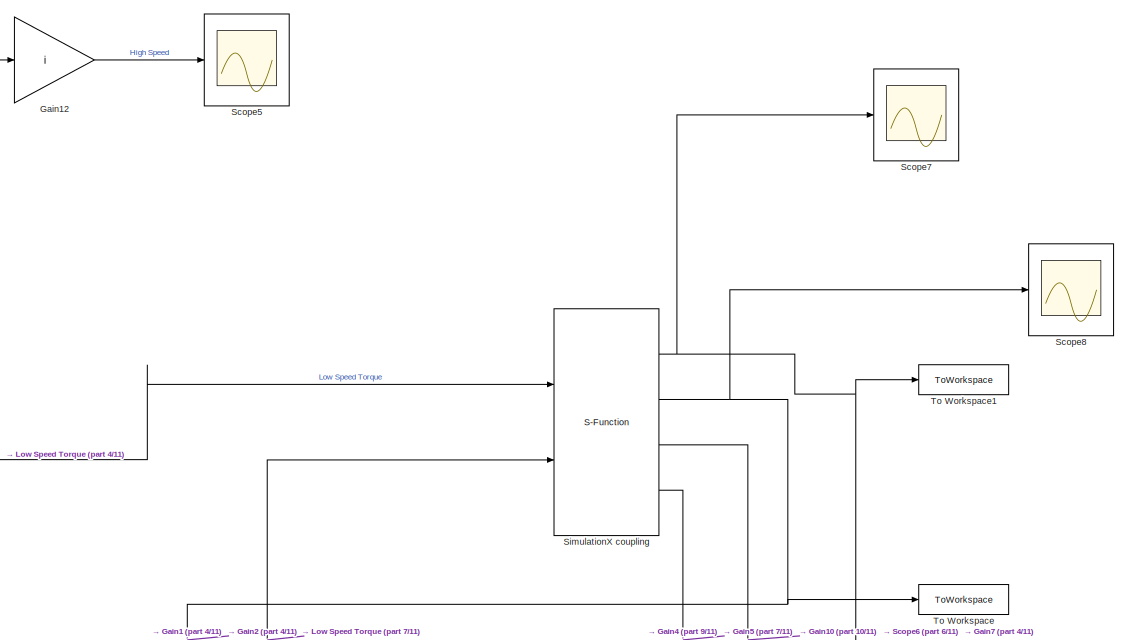
[diagram: root canvas - part 1/11, top right region]
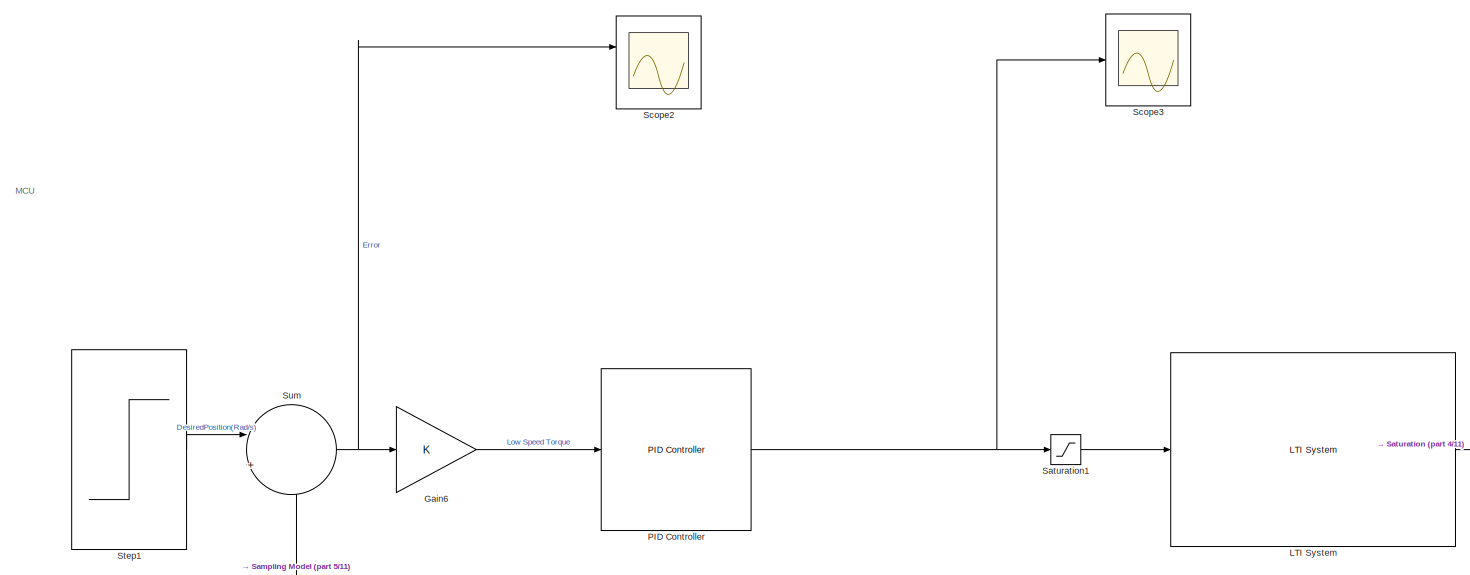
[diagram: root canvas - part 2/11, top left region]
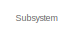
[diagram: root canvas - part 3/11, top center region]
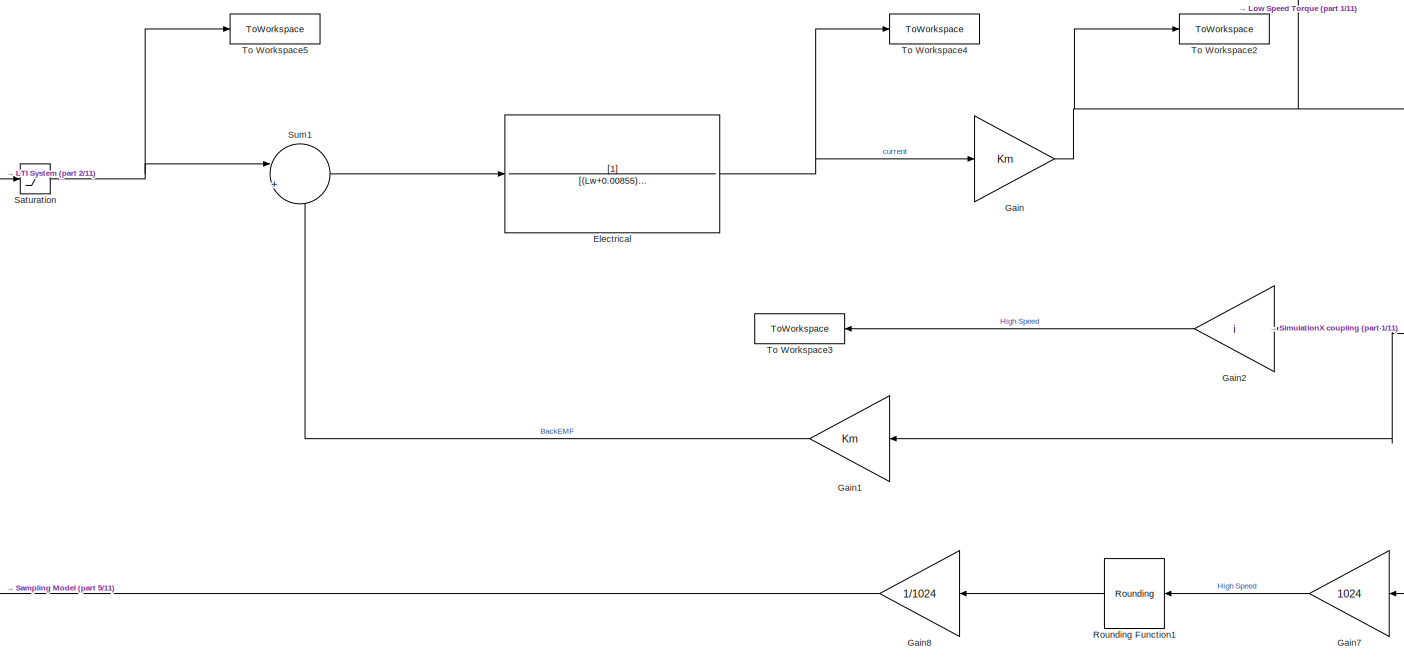
[diagram: root canvas - part 4/11, top center region]
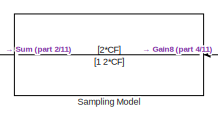
[diagram: root canvas - part 5/11, middle left region]
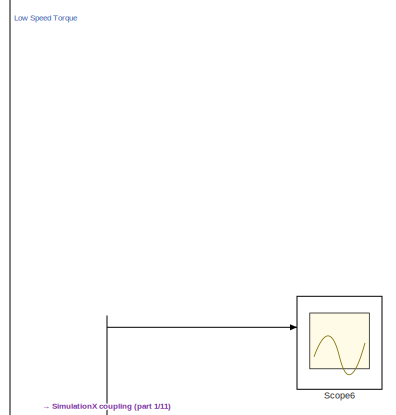
[diagram: root canvas - part 6/11, middle right region]
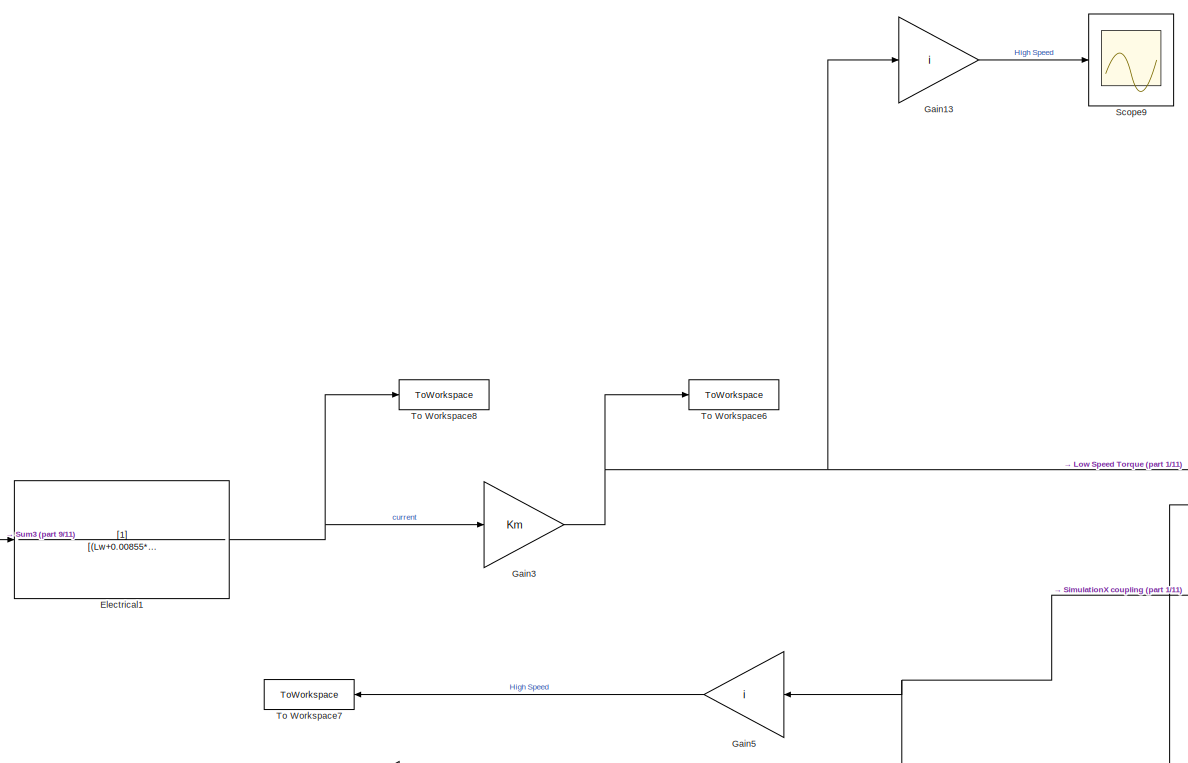
[diagram: root canvas - part 7/11, bottom center region]
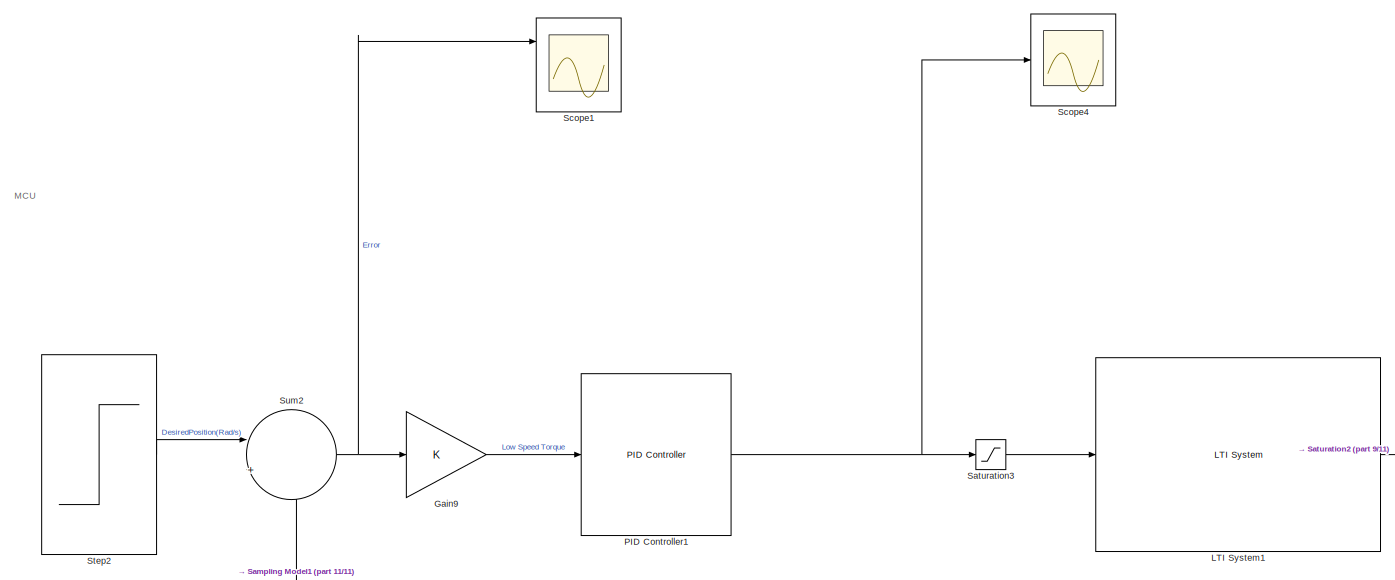
[diagram: root canvas - part 8/11, bottom left region]
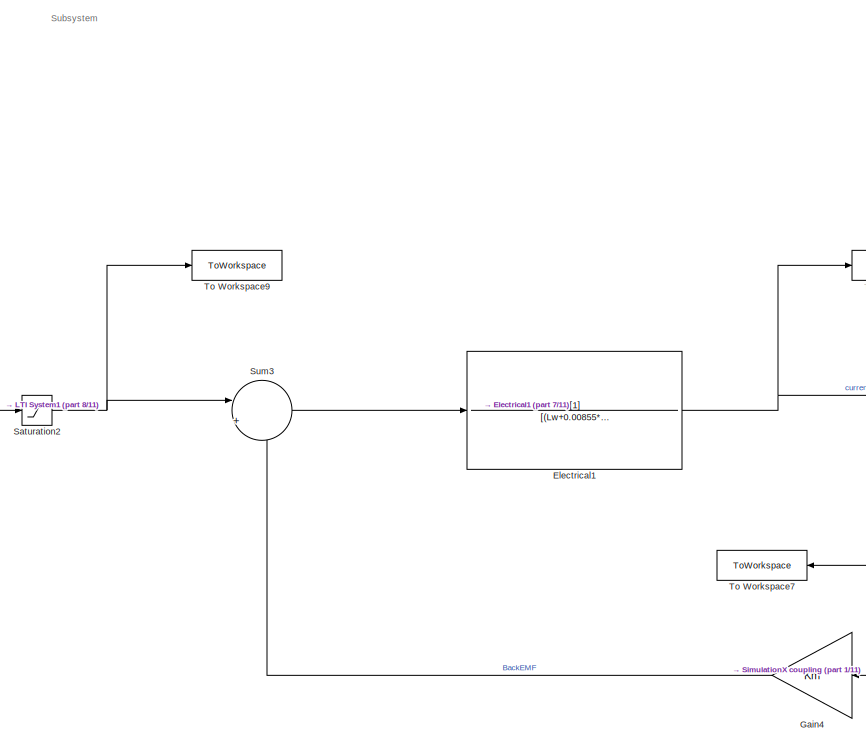
[diagram: root canvas - part 9/11, bottom center region]
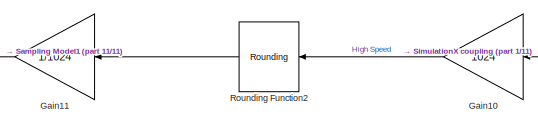
[diagram: root canvas - part 10/11, bottom center region]
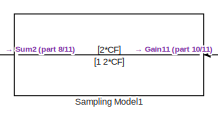
[diagram: root canvas - part 11/11, bottom left region]
MODEL slx_aac5c0de5105
KIND model
CONFIG AbsTol = auto
CONFIG EnableMultiTasking = off
CONFIG FixedStep = auto
CONFIG MaxStep = auto
CONFIG MinStep = auto
CONFIG RelTol = 1e-3
CONFIG SampleTimeConstraint = Unconstrained
CONFIG SolverName = VariableStepAuto
CONFIG StartTime = 0.0
CONFIG StopTime = 0.2
BLOCK [TransferFcn] Electrical
  Denominator = [(Lw+0.00855) Rw]
BLOCK [TransferFcn] Electrical1
  Denominator = [(Lw+0.00855*1.85) Rw]
BLOCK [Gain] Gain
  Gain = Km
BLOCK [Gain] Gain1
  Gain = Km
  NameLocation = top
BLOCK [Gain] Gain10
  Gain = 1024
  NameLocation = top
BLOCK [Gain] Gain11
  Gain = 1/1024
  NameLocation = top
BLOCK [Gain] Gain12
  Gain = i
BLOCK [Gain] Gain13
  Gain = i
BLOCK [Gain] Gain2
  Gain = i
  NameLocation = top
BLOCK [Gain] Gain3
  Gain = Km
BLOCK [Gain] Gain4
  Gain = Km
  NameLocation = top
BLOCK [Gain] Gain5
  Gain = i
  NameLocation = top
BLOCK [Gain] Gain6
BLOCK [Gain] Gain7
  Gain = 1024
  NameLocation = top
BLOCK [Gain] Gain8
  Gain = 1/1024
  NameLocation = top
BLOCK [Gain] Gain9
BLOCK [Reference] LTI System  REF=cstblocks/LTI System
  Ports = [1, 1]
  SourceBlock = cstblocks/LTI System
  SourceProductBaseCode = CT
  SourceType = LTI Block
BLOCK [Reference] LTI System1  REF=cstblocks/LTI System
  Ports = [1, 1]
  SourceBlock = cstblocks/LTI System
  SourceProductBaseCode = CT
  SourceType = LTI Block
BLOCK [Reference] PID Controller  REF=pid_lib/PID Controller
  Ports = [1, 1]
  SourceBlock = pid_lib/PID Controller
  SourceProductBaseCode = SL
  SourceType = PID 1dof
BLOCK [Reference] PID Controller1  REF=pid_lib/PID Controller
  Ports = [1, 1]
  SourceBlock = pid_lib/PID Controller
  SourceProductBaseCode = SL
  SourceType = PID 1dof
BLOCK [Rounding] Rounding Function1
  NameLocation = top
BLOCK [Rounding] Rounding Function2
  NameLocation = top
BLOCK [TransferFcn] Sampling Model
  Denominator = [1 2*CF]
  NameLocation = top
  Numerator = [2*CF]
BLOCK [TransferFcn] Sampling Model1
  Denominator = [1 2*CF]
  NameLocation = top
  Numerator = [2*CF]
BLOCK [Saturate] Saturation
  LowerLimit = -24
  UpperLimit = 24
BLOCK [Saturate] Saturation1
  LowerLimit = -5
  UpperLimit = 5
BLOCK [Saturate] Saturation2
  LowerLimit = -24
  UpperLimit = 24
BLOCK [Saturate] Saturation3
  LowerLimit = -5
  UpperLimit = 5
BLOCK [Scope] Scope1
  Floating = off
  NumInputPorts = 3
  Ports = [3]
  ScopeSpecificationString = Simulink.scopes.TimeScopeBlockCfg('CurrentConfiguration', extmgr.ConfigurationSet(extmgr.Configuration('Core','General UI',true),extmgr.Configuration('Core','Source UI',true),extmgr.Configuration('Sources','WiredSimulink',true,'DataLoggingVariableName','ScopeData1'),extmgr.Configuration('Visuals','Time Domain',true,'SerializedDisplays',{struct('MinYLimReal','-1.79724','MaxYLimReal','0.46717','YLab...<+1481ch>
BLOCK [Scope] Scope2
  Floating = off
  NumInputPorts = 2
  Ports = [2]
  ScopeSpecificationString = Simulink.scopes.TimeScopeBlockCfg('CurrentConfiguration', extmgr.ConfigurationSet(extmgr.Configuration('Core','General UI',true),extmgr.Configuration('Core','Source UI',true),extmgr.Configuration('Sources','WiredSimulink',true,'DataLoggingVariableName','ScopeData2'),extmgr.Configuration('Visuals','Time Domain',true,'SerializedDisplays',{struct('MinYLimReal','-1.96515','MaxYLimReal','1.96368','YLab...<+1478ch>
BLOCK [Scope] Scope3
  Floating = off
  NumInputPorts = 1
  Ports = [1]
  ScopeSpecificationString = Simulink.scopes.TimeScopeBlockCfg('CurrentConfiguration', extmgr.ConfigurationSet(extmgr.Configuration('Core','General UI',true),extmgr.Configuration('Core','Source UI',true),extmgr.Configuration('Sources','WiredSimulink',true,'DataLoggingVariableName','ScopeData3'),extmgr.Configuration('Visuals','Time Domain',true,'SerializedDisplays',{struct('MinYLimReal','-101.30673','MaxYLimReal','899.76852','...<+1440ch>
BLOCK [Scope] Scope4
  Floating = off
  NumInputPorts = 1
  Ports = [1]
  ScopeSpecificationString = Simulink.scopes.TimeScopeBlockCfg('CurrentConfiguration', extmgr.ConfigurationSet(extmgr.Configuration('Core','General UI',true),extmgr.Configuration('Core','Source UI',true),extmgr.Configuration('Sources','WiredSimulink',true,'DataLoggingVariableName','ScopeData2'),extmgr.Configuration('Visuals','Time Domain',true,'SerializedDisplays',{struct('MinYLimReal','-87.81835','MaxYLimReal','781.97852','Y...<+1444ch>
BLOCK [Scope] Scope5
  Floating = off
  NumInputPorts = 1
  Ports = [1]
  ScopeSpecificationString = Simulink.scopes.TimeScopeBlockCfg('CurrentConfiguration', extmgr.ConfigurationSet(extmgr.Configuration('Core','General UI',true),extmgr.Configuration('Core','Source UI',true),extmgr.Configuration('Sources','WiredSimulink',true,'DataLoggingVariableName','ScopeData4'),extmgr.Configuration('Visuals','Time Domain',true,'SerializedDisplays',{struct('MinYLimReal','-56.17109','MaxYLimReal','45.90623','YL...<+1436ch>
BLOCK [Scope] Scope6
  Floating = off
  NumInputPorts = 2
  Ports = [2]
  ScopeSpecificationString = Simulink.scopes.TimeScopeBlockCfg('CurrentConfiguration', extmgr.ConfigurationSet(extmgr.Configuration('Core','General UI',true),extmgr.Configuration('Core','Source UI',true),extmgr.Configuration('Sources','WiredSimulink',true,'DataLoggingVariableName','ScopeData3'),extmgr.Configuration('Visuals','Time Domain',true,'SerializedDisplays',{struct('MinYLimReal','-0.24905','MaxYLimReal','2.24143','YLab...<+1494ch>
BLOCK [Scope] Scope7
  Floating = off
  NumInputPorts = 1
  Ports = [1]
  ScopeSpecificationString = Simulink.scopes.TimeScopeBlockCfg('CurrentConfiguration', extmgr.ConfigurationSet(extmgr.Configuration('Core','General UI',true),extmgr.Configuration('Core','Source UI',true),extmgr.Configuration('Sources','WiredSimulink',true,'DataLoggingVariableName','ScopeData5'),extmgr.Configuration('Visuals','Time Domain',true,'SerializedDisplays',{struct('MinYLimReal','-0.24743','MaxYLimReal','2.22689','YLab...<+1411ch>
BLOCK [Scope] Scope8
  Floating = off
  NumInputPorts = 1
  Ports = [1]
  ScopeSpecificationString = Simulink.scopes.TimeScopeBlockCfg('CurrentConfiguration', extmgr.ConfigurationSet(extmgr.Configuration('Core','General UI',true),extmgr.Configuration('Core','Source UI',true),extmgr.Configuration('Sources','WiredSimulink',true,'DataLoggingVariableName','ScopeData6'),extmgr.Configuration('Visuals','Time Domain',true,'SerializedDisplays',{struct('MinYLimReal','-0.24743','MaxYLimReal','2.22689','YLab...<+1411ch>
BLOCK [Scope] Scope9
  Floating = off
  NumInputPorts = 1
  Ports = [1]
  ScopeSpecificationString = Simulink.scopes.TimeScopeBlockCfg('CurrentConfiguration', extmgr.ConfigurationSet(extmgr.Configuration('Core','General UI',true),extmgr.Configuration('Core','Source UI',true),extmgr.Configuration('Sources','WiredSimulink',true,'DataLoggingVariableName','ScopeData7'),extmgr.Configuration('Visuals','Time Domain',true,'SerializedDisplays',{struct('MinYLimReal','-23.48174','MaxYLimReal','20.978','YLab...<+1433ch>
BLOCK [S-Function] SimulationX coupling
  EnableBusSupport = off
  FunctionName = ITIFct2
  Parameters = ip, port, ts, nIn, nOut
  Ports = [2, 4]
  SFcnIsStateOwnerBlock = off
  SFunctionDeploymentMode = off
BLOCK [Step] Step1
  After = 0
  Before = pi/2
  SampleTime = sampleTime
  Time = 2.5
BLOCK [Step] Step2
  After = 0
  Before = -pi/2
  SampleTime = sampleTime
  Time = 2.5
BLOCK [Sum] Sum
  Inputs = |+-
  Ports = [2, 1]
BLOCK [Sum] Sum1
  Inputs = |+-
  Ports = [2, 1]
BLOCK [Sum] Sum2
  Inputs = |+-
  Ports = [2, 1]
BLOCK [Sum] Sum3
  Inputs = |+-
  Ports = [2, 1]
BLOCK [ToWorkspace] To Workspace
  FixptAsFi = on
  MaxDataPoints = inf
  Ports = [1]
  SampleTime = sampleTime
  SaveFormat = Timeseries
  VariableName = AngularVelocityM
BLOCK [ToWorkspace] To Workspace1
  FixptAsFi = on
  MaxDataPoints = inf
  Ports = [1]
  SampleTime = -1
  SaveFormat = Timeseries
  VariableName = position
BLOCK [ToWorkspace] To Workspace2
  FixptAsFi = on
  MaxDataPoints = inf
  Ports = [1]
  SampleTime = -1
  SaveFormat = Timeseries
  VariableName = torque
BLOCK [ToWorkspace] To Workspace3
  FixptAsFi = on
  MaxDataPoints = inf
  NameLocation = top
  Ports = [1]
  SampleTime = sampleTime
  SaveFormat = Timeseries
  VariableName = AngularVelocityM1
BLOCK [ToWorkspace] To Workspace4
  FixptAsFi = on
  MaxDataPoints = inf
  Ports = [1]
  SampleTime = -1
  SaveFormat = Timeseries
  VariableName = current
BLOCK [ToWorkspace] To Workspace5
  FixptAsFi = on
  MaxDataPoints = inf
  Ports = [1]
  SampleTime = -1
  SaveFormat = Timeseries
  VariableName = voltage
BLOCK [ToWorkspace] To Workspace6
  FixptAsFi = on
  MaxDataPoints = inf
  Ports = [1]
  SampleTime = -1
  SaveFormat = Timeseries
  VariableName = torque1
BLOCK [ToWorkspace] To Workspace7
  FixptAsFi = on
  MaxDataPoints = inf
  NameLocation = top
  Ports = [1]
  SampleTime = sampleTime
  SaveFormat = Timeseries
  VariableName = AngularVelocityM2
BLOCK [ToWorkspace] To Workspace8
  FixptAsFi = on
  MaxDataPoints = inf
  Ports = [1]
  SampleTime = -1
  SaveFormat = Timeseries
  VariableName = current1
BLOCK [ToWorkspace] To Workspace9
  FixptAsFi = on
  MaxDataPoints = inf
  Ports = [1]
  SampleTime = -1
  SaveFormat = Timeseries
  VariableName = voltage1
ANNOTATION (root): MCU
ANNOTATION (root): Subsystem
NET Electrical1:1 -> Gain3:1, To Workspace8:1
NET Electrical:1 -> Gain:1, To Workspace4:1
LINE Gain10:1 -> Rounding Function2:1
LINE Gain11:1 -> Sampling Model1:1
LINE Gain12:1 -> Scope5:1
LINE Gain13:1 -> Scope9:1
LINE Gain1:1 -> Sum1:2
LINE Gain2:1 -> To Workspace3:1
NET Gain3:1 -> Gain13:1, SimulationX coupling:2, To Workspace6:1
LINE Gain4:1 -> Sum3:2
LINE Gain5:1 -> To Workspace7:1
LINE Gain6:1 -> PID Controller:1
LINE Gain7:1 -> Rounding Function1:1
LINE Gain8:1 -> Sampling Model:1
LINE Gain9:1 -> PID Controller1:1
NET Gain:1 -> Gain12:1, SimulationX coupling:1, To Workspace2:1
LINE LTI System1:1 -> Saturation2:1
LINE LTI System:1 -> Saturation:1
NET PID Controller1:1 -> Saturation3:1, Scope4:1
NET PID Controller:1 -> Saturation1:1, Scope3:1
LINE Rounding Function1:1 -> Gain8:1
LINE Rounding Function2:1 -> Gain11:1
LINE Sampling Model1:1 -> Sum2:2
LINE Sampling Model:1 -> Sum:2
LINE Saturation1:1 -> LTI System:1
NET Saturation2:1 -> Sum3:1, To Workspace9:1
LINE Saturation3:1 -> LTI System1:1
NET Saturation:1 -> Sum1:1, To Workspace5:1
NET SimulationX coupling:1 -> Gain7:1, Scope7:1, To Workspace1:1
NET SimulationX coupling:2 -> Gain1:1, Gain2:1, Scope8:1, To Workspace:1
NET SimulationX coupling:3 -> Gain10:1, Scope6:1
NET SimulationX coupling:4 -> Gain4:1, Gain5:1
LINE Step1:1 -> Sum:1
LINE Step2:1 -> Sum2:1
LINE Sum1:1 -> Electrical:1
NET Sum2:1 -> Gain9:1, Scope1:1
LINE Sum3:1 -> Electrical1:1
NET Sum:1 -> Gain6:1, Scope2:1
note: NET lines group one-source signal fan-out (src -> all destinations, sorted); 1:1 wires keep LINE
